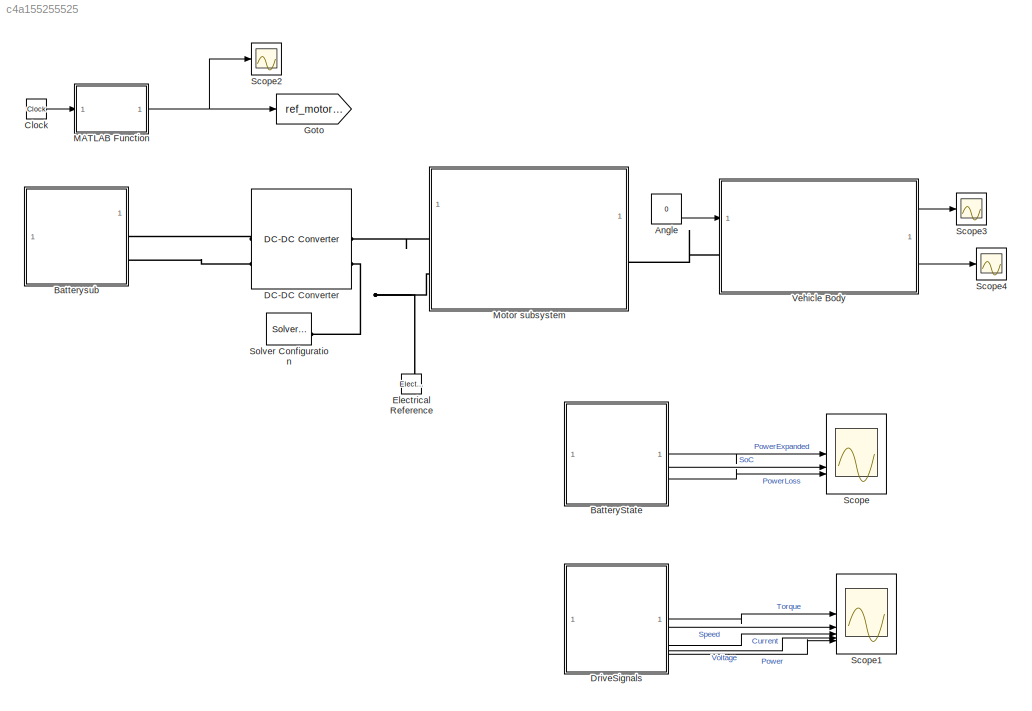
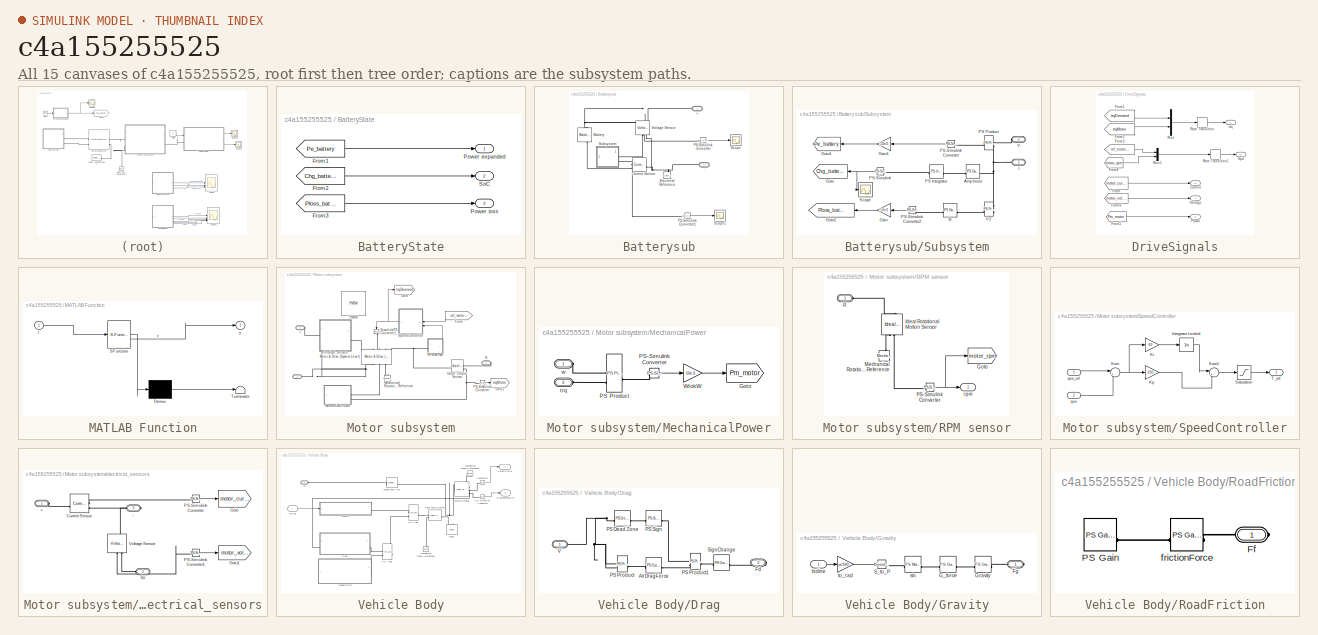
[diagram: thumbnail index - all 15 canvases of the model, root first then tree order]
MODEL slx_c4a155255525
KIND model
CONFIG AbsTol = 1e-3
CONFIG EnableMultiTasking = off
CONFIG FixedStep = auto
CONFIG MaxStep = auto
CONFIG MinStep = auto
CONFIG RelTol = 1e-3
CONFIG SampleTimeConstraint = Unconstrained
CONFIG SolverName = ode15s
CONFIG StartTime = 0.0
CONFIG StopTime = 10
BLOCK [Constant] Angle
  NameLocation = top
  Value = 0
BLOCK [SubSystem] BatteryState
BLOCK [From] BatteryState/From1
  GotoTag = Pe_battery
  TagVisibility = global
BLOCK [From] BatteryState/From2
  GotoTag = Chg_battery
  TagVisibility = global
BLOCK [From] BatteryState/From3
  GotoTag = Ploss_battery
  TagVisibility = global
BLOCK [Outport] BatteryState/Power expanded 
BLOCK [Outport] BatteryState/Power loss
  Port = 3
BLOCK [Outport] BatteryState/SoC
  Port = 2
BLOCK [SubSystem] Batterysub
BLOCK [PMIOPort] Batterysub/+
  Side = Left
BLOCK [PMIOPort] Batterysub/-
  Port = 2
  Side = Left
BLOCK [Reference] Batterysub/Battery  REF=batteryecm_lib/Battery
  LibrarySourceBlock = ee_lib/Sources/Battery
  NameLocation = right
  SourceBlock = batteryecm_lib/Battery
  SourceType = Battery
BLOCK [Reference] Batterysub/Current Sensor  REF=fl_lib/Electrical/Electrical Sensors/Current Sensor
  SourceBlock = fl_lib/Electrical/Electrical Sensors/Current Sensor
  SourceType = Current Sensor
BLOCK [Reference] Batterysub/Electrical Reference  REF=fl_lib/Electrical/Electrical Elements/Electrical Reference
  NameLocation = right
  SourceBlock = fl_lib/Electrical/Electrical Elements/Electrical Reference
  SourceType = Electrical Reference
BLOCK [Reference] Batterysub/PS-Simulink Converter  REF=nesl_utility/PS-Simulink
Converter
  SourceBlock = nesl_utility/PS-Simulink\nConverter
  SourceType = PS-Simulink\nConverter
BLOCK [Reference] Batterysub/PS-Simulink Converter1  REF=nesl_utility/PS-Simulink
Converter
  SourceBlock = nesl_utility/PS-Simulink\nConverter
  SourceType = PS-Simulink\nConverter
BLOCK [Scope] Batterysub/Scope
  Floating = off
  NumInputPorts = 1
  ScopeSpecificationString = Simulink.scopes.TimeScopeBlockCfg('CurrentConfiguration', extmgr.ConfigurationSet(extmgr.Configuration('Core','General UI',true),extmgr.Configuration('Core','Source UI',true),extmgr.Configuration('Sources','WiredSimulink',true,'DataLoggingVariableName','ScopeData3'),extmgr.Configuration('Visuals','Time Domain',true,'SerializedDisplays',{struct('MinYLimReal','195.54002','MaxYLimReal','195.61664','Y...<+1483ch>
BLOCK [Scope] Batterysub/Scope1
  Floating = off
  NumInputPorts = 1
  ScopeSpecificationString = Simulink.scopes.TimeScopeBlockCfg('CurrentConfiguration', extmgr.ConfigurationSet(extmgr.Configuration('Core','General UI',true),extmgr.Configuration('Core','Source UI',true),extmgr.Configuration('Sources','WiredSimulink',true,'DataLoggingVariableName','ScopeData4'),extmgr.Configuration('Visuals','Time Domain',true,'SerializedDisplays',{struct('MinYLimReal','0.21756','MaxYLimReal','1.74984','YLabe...<+1468ch>
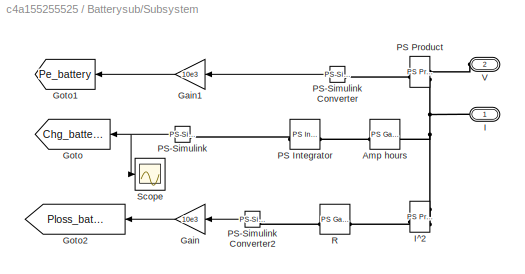
BLOCK [SubSystem] Batterysub/Subsystem
BLOCK [Reference] Batterysub/Subsystem/Amp hours  REF=fl_lib/Physical Signals/Functions/PS Gain
  SourceBlock = fl_lib/Physical Signals/Functions/PS Gain
  SourceType = PS Gain
BLOCK [Gain] Batterysub/Subsystem/Gain
  Gain = 10e3
BLOCK [Gain] Batterysub/Subsystem/Gain1
  Gain = 10e3
BLOCK [Goto] Batterysub/Subsystem/Goto
  GotoTag = Chg_battery
  TagVisibility = global
BLOCK [Goto] Batterysub/Subsystem/Goto1
  GotoTag = Pe_battery
  TagVisibility = global
BLOCK [Goto] Batterysub/Subsystem/Goto2
  GotoTag = Ploss_battery
  TagVisibility = global
BLOCK [PMIOPort] Batterysub/Subsystem/I
  Side = Left
BLOCK [Reference] Batterysub/Subsystem/I^2  REF=fl_lib/Physical Signals/Functions/PS Product
  SourceBlock = fl_lib/Physical Signals/Functions/PS Product
  SourceType = PS Product
BLOCK [Reference] Batterysub/Subsystem/PS Integrator  REF=fl_lib/Physical Signals/Linear Operators/PS Integrator
  SourceBlock = fl_lib/Physical Signals/Linear Operators/PS Integrator
  SourceType = PS Integrator
BLOCK [Reference] Batterysub/Subsystem/PS Product  REF=fl_lib/Physical Signals/Functions/PS Product
  SourceBlock = fl_lib/Physical Signals/Functions/PS Product
  SourceType = PS Product
BLOCK [Reference] Batterysub/Subsystem/PS-Simulink   REF=nesl_utility/PS-Simulink
Converter
  SourceBlock = nesl_utility/PS-Simulink\nConverter
  SourceType = PS-Simulink\nConverter
BLOCK [Reference] Batterysub/Subsystem/PS-Simulink Converter  REF=nesl_utility/PS-Simulink
Converter
  SourceBlock = nesl_utility/PS-Simulink\nConverter
  SourceType = PS-Simulink\nConverter
BLOCK [Reference] Batterysub/Subsystem/PS-Simulink Converter2  REF=nesl_utility/PS-Simulink
Converter
  SourceBlock = nesl_utility/PS-Simulink\nConverter
  SourceType = PS-Simulink\nConverter
BLOCK [Reference] Batterysub/Subsystem/R  REF=fl_lib/Physical Signals/Functions/PS Gain
  SourceBlock = fl_lib/Physical Signals/Functions/PS Gain
  SourceType = PS Gain
BLOCK [Scope] Batterysub/Subsystem/Scope
  Floating = off
  NumInputPorts = 1
  ScopeSpecificationString = Simulink.scopes.TimeScopeBlockCfg('CurrentConfiguration', extmgr.ConfigurationSet(extmgr.Configuration('Core','General UI',true),extmgr.Configuration('Core','Source UI',true),extmgr.Configuration('Sources','WiredSimulink',true,'DataLoggingVariableName','ScopeData5'),extmgr.Configuration('Visuals','Time Domain',true,'SerializedDisplays',{struct('MinYLimReal','0.99906','MaxYLimReal','1.02389','YLabe...<+1529ch>
BLOCK [PMIOPort] Batterysub/Subsystem/V
  Port = 2
  Side = Left
BLOCK [Reference] Batterysub/Voltage Sensor  REF=fl_lib/Electrical/Electrical Sensors/Voltage Sensor
  NameLocation = right
  SourceBlock = fl_lib/Electrical/Electrical Sensors/Voltage Sensor
  SourceType = Voltage Sensor
BLOCK [Clock] Clock
BLOCK [Reference] DC-DC Converter  REF=ee_lib/Semiconductors &
Converters/Converters/DC-DC Converter
  SourceBlock = ee_lib/Semiconductors &\nConverters/Converters/DC-DC Converter
  SourceType = DC-DC Converter
BLOCK [SubSystem] DriveSignals
BLOCK [Outport] DriveSignals/Current
  Port = 3
BLOCK [From] DriveSignals/From
  GotoTag = motor_current
  TagVisibility = global
BLOCK [From] DriveSignals/From1
  GotoTag = trqDemand
  TagVisibility = global
BLOCK [From] DriveSignals/From2
  GotoTag = trqMotor
  TagVisibility = global
BLOCK [From] DriveSignals/From3
  GotoTag = ref_motor_rpm
  TagVisibility = global
BLOCK [From] DriveSignals/From4
  GotoTag = motor_voltage
  TagVisibility = global
BLOCK [From] DriveSignals/From5
  GotoTag = Pm_motor
  TagVisibility = global
BLOCK [From] DriveSignals/From6
  GotoTag = motor_rpm
  TagVisibility = global
BLOCK [Mux] DriveSignals/Mux
  DisplayOption = bar
  Inputs = 2
BLOCK [Mux] DriveSignals/Mux1
  DisplayOption = bar
  Inputs = 2
BLOCK [Outport] DriveSignals/Power
  Port = 5
BLOCK [RateTransition] DriveSignals/Rate Transition
BLOCK [RateTransition] DriveSignals/Rate Transition1
BLOCK [Outport] DriveSignals/Spd
  Port = 2
BLOCK [Outport] DriveSignals/Voltage
  Port = 4
BLOCK [Outport] DriveSignals/trq
BLOCK [Reference] Electrical Reference  REF=fl_lib/Electrical/Electrical Elements/Electrical Reference
  NameLocation = right
  SourceBlock = fl_lib/Electrical/Electrical Elements/Electrical Reference
  SourceType = Electrical Reference
BLOCK [Goto] Goto
  GotoTag = ref_motor_rpm
  TagVisibility = global
BLOCK [SubSystem] MATLAB Function
  ErrorFcn = Stateflow.Translate.translate
  PermitHierarchicalResolution = ExplicitOnly
  SFBlockType = MATLAB Function
  TreatAsAtomicUnit = on
BLOCK [Demux] MATLAB Function/ Demux 
  Outputs = 1
BLOCK [S-Function] MATLAB Function/ SFunction 
  EnableBusSupport = on
  FunctionName = sf_sfun
  PortCounts = [1 2]
  SFcnIsStateOwnerBlock = off
  SFunctionDeploymentMode = off
  Tag = Stateflow S-Function 2
BLOCK [Terminator] MATLAB Function/ Terminator 
BLOCK [Inport] MATLAB Function/t
BLOCK [Outport] MATLAB Function/y
BLOCK [SubSystem] Motor subsystem
BLOCK [PMIOPort] Motor subsystem/+
  Side = Left
BLOCK [PMIOPort] Motor subsystem/-
  Port = 2
  Side = Left
BLOCK [From] Motor subsystem/From
  GotoTag = ref_motor_rpm
  TagVisibility = global
BLOCK [Goto] Motor subsystem/Goto
  GotoTag = trqDemand
  TagVisibility = global
BLOCK [Goto] Motor subsystem/Goto1
  GotoTag = trqMotor
  TagVisibility = global
BLOCK [Reference] Motor subsystem/Ideal Torque Sensor  REF=fl_lib/Mechanical/Mechanical Sensors/Ideal Torque Sensor
  SourceBlock = fl_lib/Mechanical/Mechanical Sensors/Ideal Torque Sensor
  SourceType = Ideal Torque Sensor
BLOCK [Reference] Motor subsystem/Mechanical Rotational Reference  REF=fl_lib/Mechanical/Rotational Elements/Mechanical
Rotational Reference
  NameLocation = right
  SourceBlock = fl_lib/Mechanical/Rotational Elements/Mechanical\nRotational Reference
  SourceType = Mechanical\nRotational Reference
BLOCK [SubSystem] Motor subsystem/MechanicalPower
BLOCK [Goto] Motor subsystem/MechanicalPower/Goto
  GotoTag = Pm_motor
  TagVisibility = global
BLOCK [Reference] Motor subsystem/MechanicalPower/PS Product  REF=fl_lib/Physical Signals/Functions/PS Product
  SourceBlock = fl_lib/Physical Signals/Functions/PS Product
  SourceType = PS Product
BLOCK [Reference] Motor subsystem/MechanicalPower/PS-Simulink Converter  REF=nesl_utility/PS-Simulink
Converter
  SourceBlock = nesl_utility/PS-Simulink\nConverter
  SourceType = PS-Simulink\nConverter
BLOCK [Gain] Motor subsystem/MechanicalPower/WtokW
  Gain = 10e-3
BLOCK [PMIOPort] Motor subsystem/MechanicalPower/trq
  Port = 2
  Side = Left
BLOCK [PMIOPort] Motor subsystem/MechanicalPower/w
  NameLocation = top
  Side = Left
BLOCK [Reference] Motor subsystem/Motor & Drive (System Level)  REF=ee_lib/Electromechanical/Motor & Drive
(System Level)
  NameLocation = right
  SourceBlock = ee_lib/Electromechanical/Motor & Drive\n(System Level)
  SourceType = Motor & Drive\n(System Level)
BLOCK [Reference] Motor subsystem/PMSM  REF=ee_lib/Electromechanical/Permanent Magnet/PMSM
  SourceBlock = ee_lib/Electromechanical/Permanent Magnet/PMSM
  SourceType = PMSM
BLOCK [Reference] Motor subsystem/PS-Simulink Converter  REF=nesl_utility/PS-Simulink
Converter
  SourceBlock = nesl_utility/PS-Simulink\nConverter
  SourceType = PS-Simulink\nConverter
BLOCK [PMIOPort] Motor subsystem/R
  Port = 3
  Side = Right
BLOCK [SubSystem] Motor subsystem/RPM sensor
  PortSchema = {"entries":[{"content":{"sides":[{"content":{"connectorIds":["LConn1"]},"type":"ConnectorPlacement.EquallySpacedRectSide","uuid":"39d046d5-f421-4f0d-879d-c19748025329"},{"content":{"side":"RIGHT"},"type":"ConnectorPlacement.EquallySpacedRectSide","uuid":"b6149d9e-7ab3-4f68-a15b-9fef8f2169c7"},{"content":{"connectorIds":["Out1"],"side":"TOP"},"type":"ConnectorPlacement.EquallySpacedRectSide","uuid"...<+225ch>
BLOCK [Goto] Motor subsystem/RPM sensor/Goto
  GotoTag = motor_rpm
  TagVisibility = global
BLOCK [Reference] Motor subsystem/RPM sensor/Ideal Rotational Motion Sensor  REF=fl_lib/Mechanical/Mechanical Sensors/Ideal Rotational
Motion Sensor
  NameLocation = left
  SourceBlock = fl_lib/Mechanical/Mechanical Sensors/Ideal Rotational\nMotion Sensor
  SourceType = Ideal Rotational\nMotion Sensor
BLOCK [Reference] Motor subsystem/RPM sensor/Mechanical Rotational Reference  REF=fl_lib/Mechanical/Rotational Elements/Mechanical
Rotational Reference
  NameLocation = right
  SourceBlock = fl_lib/Mechanical/Rotational Elements/Mechanical\nRotational Reference
  SourceType = Mechanical\nRotational Reference
BLOCK [Reference] Motor subsystem/RPM sensor/PS-Simulink Converter  REF=nesl_utility/PS-Simulink
Converter
  SourceBlock = nesl_utility/PS-Simulink\nConverter
  SourceType = PS-Simulink\nConverter
BLOCK [PMIOPort] Motor subsystem/RPM sensor/R
  Side = Left
BLOCK [Outport] Motor subsystem/RPM sensor/rpm
BLOCK [Reference] Motor subsystem/Simulink-PS Converter1  REF=nesl_utility/Simulink-PS
Converter
  NameLocation = left
  SourceBlock = nesl_utility/Simulink-PS\nConverter
  SourceType = Simulink-PS\nConverter
BLOCK [SubSystem] Motor subsystem/SpeedController
BLOCK [Integrator] Motor subsystem/SpeedController/Integrator Limited
  LimitOutput = on
  LowerSaturationLimit = -40
  UpperSaturationLimit = 40
BLOCK [Gain] Motor subsystem/SpeedController/Ki
  Gain = 60
BLOCK [Gain] Motor subsystem/SpeedController/Kp
  Gain = 200
BLOCK [Saturate] Motor subsystem/SpeedController/Saturation
  LowerLimit = -40
  UpperLimit = 400
BLOCK [Sum] Motor subsystem/SpeedController/Sum
  Inputs = |+-
  NameLocation = top
BLOCK [Sum] Motor subsystem/SpeedController/Sum1
  Inputs = |++
BLOCK [Outport] Motor subsystem/SpeedController/T_ref
BLOCK [Inport] Motor subsystem/SpeedController/rpm
  Port = 2
BLOCK [Inport] Motor subsystem/SpeedController/rpm_ref
BLOCK [SubSystem] Motor subsystem/electrical_sensors
BLOCK [PMIOPort] Motor subsystem/electrical_sensors/+
  Side = Left
BLOCK [PMIOPort] Motor subsystem/electrical_sensors/-
  Port = 3
  Side = Right
BLOCK [PMIOPort] Motor subsystem/electrical_sensors/0V
  Port = 2
  Side = Left
BLOCK [Reference] Motor subsystem/electrical_sensors/Current Sensor  REF=fl_lib/Electrical/Electrical Sensors/Current Sensor
  SourceBlock = fl_lib/Electrical/Electrical Sensors/Current Sensor
  SourceType = Current Sensor
BLOCK [Goto] Motor subsystem/electrical_sensors/Goto
  GotoTag = motor_current
  TagVisibility = global
BLOCK [Goto] Motor subsystem/electrical_sensors/Goto1
  GotoTag = motor_voltage
  TagVisibility = global
BLOCK [Reference] Motor subsystem/electrical_sensors/PS-Simulink Converter  REF=nesl_utility/PS-Simulink
Converter
  SourceBlock = nesl_utility/PS-Simulink\nConverter
  SourceType = PS-Simulink\nConverter
BLOCK [Reference] Motor subsystem/electrical_sensors/PS-Simulink Converter1  REF=nesl_utility/PS-Simulink
Converter
  SourceBlock = nesl_utility/PS-Simulink\nConverter
  SourceType = PS-Simulink\nConverter
BLOCK [Reference] Motor subsystem/electrical_sensors/Voltage Sensor  REF=fl_lib/Electrical/Electrical Sensors/Voltage Sensor
  NameLocation = right
  SourceBlock = fl_lib/Electrical/Electrical Sensors/Voltage Sensor
  SourceType = Voltage Sensor
BLOCK [Scope] Scope
  Floating = off
  NumInputPorts = 3
  ScopeSpecificationString = Simulink.scopes.TimeScopeBlockCfg('CurrentConfiguration', extmgr.ConfigurationSet(extmgr.Configuration('Core','General UI',true),extmgr.Configuration('Core','Source UI',true),extmgr.Configuration('Sources','WiredSimulink',true),extmgr.Configuration('Visuals','Time Domain',true,'SerializedDisplays',{struct('MinYLimReal','425698.03885','MaxYLimReal','3421748.57382','YLabelReal','','MinYLimMag','4256...<+2322ch>
BLOCK [Scope] Scope1
  Floating = off
  NumInputPorts = 5
  ScopeSpecificationString = Simulink.scopes.TimeScopeBlockCfg('CurrentConfiguration', extmgr.ConfigurationSet(extmgr.Configuration('Core','General UI',true),extmgr.Configuration('Core','Source UI',true),extmgr.Configuration('Sources','WiredSimulink',true,'DataLoggingVariableName','ScopeData1'),extmgr.Configuration('Visuals','Time Domain',true,'SerializedDisplays',{struct('MinYLimReal','-95.00000','MaxYLimReal','455.00000','Y...<+4284ch>
BLOCK [Scope] Scope2
  Floating = off
  NumInputPorts = 1
  ScopeSpecificationString = Simulink.scopes.TimeScopeBlockCfg('CurrentConfiguration', extmgr.ConfigurationSet(extmgr.Configuration('Core','General UI',true),extmgr.Configuration('Core','Source UI',true),extmgr.Configuration('Sources','WiredSimulink',true,'DataLoggingVariableName','ScopeData2'),extmgr.Configuration('Visuals','Time Domain',true,'SerializedDisplays',{struct('MinYLimReal','-12.5','MaxYLimReal','112.5','YLabelRea...<+1449ch>
BLOCK [Scope] Scope3
  Floating = off
  NumInputPorts = 1
  ScopeSpecificationString = Simulink.scopes.TimeScopeBlockCfg('CurrentConfiguration', extmgr.ConfigurationSet(extmgr.Configuration('Core','General UI',true),extmgr.Configuration('Core','Source UI',true),extmgr.Configuration('Sources','WiredSimulink',true,'DataLoggingVariableName','ScopeData1'),extmgr.Configuration('Visuals','Time Domain',true,'SerializedDisplays',{struct('MinYLimReal','-0.08983','MaxYLimReal','0.80843','YLab...<+1487ch>
BLOCK [Scope] Scope4
  Floating = off
  NumInputPorts = 1
  ScopeSpecificationString = Simulink.scopes.TimeScopeBlockCfg('CurrentConfiguration', extmgr.ConfigurationSet(extmgr.Configuration('Core','General UI',true),extmgr.Configuration('Core','Source UI',true),extmgr.Configuration('Sources','WiredSimulink',true,'DataLoggingVariableName','ScopeData2'),extmgr.Configuration('Visuals','Time Domain',true,'SerializedDisplays',{struct('MinYLimReal','-0.60262','MaxYLimReal','5.42356','YLab...<+1462ch>
BLOCK [Reference] Solver Configuration  REF=nesl_utility/Solver
Configuration
  SourceBlock = nesl_utility/Solver\nConfiguration
  SourceType = Solver\nConfiguration
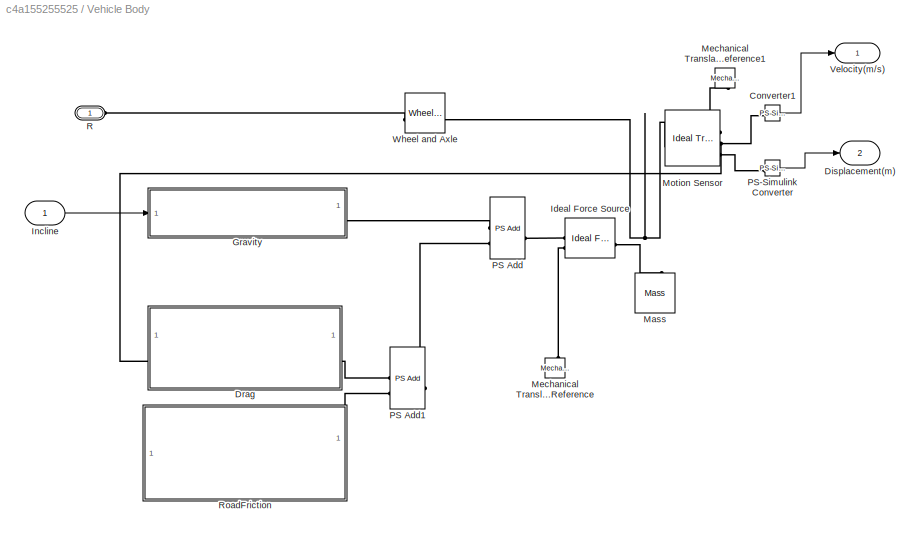
BLOCK [SubSystem] Vehicle Body
BLOCK [Reference] Vehicle Body/Converter1  REF=nesl_utility/PS-Simulink
Converter
  SourceBlock = nesl_utility/PS-Simulink\nConverter
  SourceType = PS-Simulink\nConverter
BLOCK [Outport] Vehicle Body/Displacement(m)
  Port = 2
BLOCK [SubSystem] Vehicle Body/Drag
BLOCK [Reference] Vehicle Body/Drag/AirDragForce  REF=fl_lib/Physical Signals/Functions/PS Gain
  SourceBlock = fl_lib/Physical Signals/Functions/PS Gain
  SourceType = PS Gain
BLOCK [PMIOPort] Vehicle Body/Drag/Fd
  Port = 2
  Side = Right
BLOCK [Reference] Vehicle Body/Drag/PS Dead Zone  REF=fl_lib/Physical Signals/Nonlinear Operators/PS Dead Zone
  SourceBlock = fl_lib/Physical Signals/Nonlinear Operators/PS Dead Zone
  SourceType = PS Dead Zone
BLOCK [Reference] Vehicle Body/Drag/PS Product  REF=fl_lib/Physical Signals/Functions/PS Product
  SourceBlock = fl_lib/Physical Signals/Functions/PS Product
  SourceType = PS Product
BLOCK [Reference] Vehicle Body/Drag/PS Product1  REF=fl_lib/Physical Signals/Functions/PS Product
  SourceBlock = fl_lib/Physical Signals/Functions/PS Product
  SourceType = PS Product
BLOCK [Reference] Vehicle Body/Drag/PS Sign  REF=fl_lib/Physical Signals/Nonlinear Operators/PS Sign
  SourceBlock = fl_lib/Physical Signals/Nonlinear Operators/PS Sign
  SourceType = PS Sign
BLOCK [Reference] Vehicle Body/Drag/SignChange  REF=fl_lib/Physical Signals/Functions/PS Gain
  SourceBlock = fl_lib/Physical Signals/Functions/PS Gain
  SourceType = PS Gain
BLOCK [PMIOPort] Vehicle Body/Drag/V
  Side = Left
BLOCK [SubSystem] Vehicle Body/Gravity
BLOCK [PMIOPort] Vehicle Body/Gravity/Fg
  Side = Right
BLOCK [Reference] Vehicle Body/Gravity/G_force  REF=fl_lib/Physical Signals/Functions/PS Gain
  SourceBlock = fl_lib/Physical Signals/Functions/PS Gain
  SourceType = PS Gain
BLOCK [Reference] Vehicle Body/Gravity/Gravity  REF=fl_lib/Physical Signals/Functions/PS Gain
  SourceBlock = fl_lib/Physical Signals/Functions/PS Gain
  SourceType = PS Gain
BLOCK [Inport] Vehicle Body/Gravity/Incline
BLOCK [Reference] Vehicle Body/Gravity/S_to_P  REF=nesl_utility/Simulink-PS
Converter
  SourceBlock = nesl_utility/Simulink-PS\nConverter
  SourceType = Simulink-PS\nConverter
BLOCK [Reference] Vehicle Body/Gravity/sin  REF=fl_lib/Physical Signals/Functions/PS Math Function
  SourceBlock = fl_lib/Physical Signals/Functions/PS Math Function
  SourceType = PS Math Function
BLOCK [Gain] Vehicle Body/Gravity/to_rad
  Gain = pi/180
BLOCK [Reference] Vehicle Body/Ideal Force Source  REF=fl_lib/Mechanical/Mechanical Sources/Ideal Force Source
  SourceBlock = fl_lib/Mechanical/Mechanical Sources/Ideal Force Source
  SourceType = Ideal Force Source
BLOCK [Inport] Vehicle Body/Incline
BLOCK [Reference] Vehicle Body/Mass  REF=fl_lib/Mechanical/Translational
Elements/Mass
  NameLocation = right
  SourceBlock = fl_lib/Mechanical/Translational\nElements/Mass
  SourceType = Mass
BLOCK [Reference] Vehicle Body/Mechanical Translational Reference  REF=fl_lib/Mechanical/Translational
Elements/Mechanical
Translational
Reference
  NameLocation = right
  SourceBlock = fl_lib/Mechanical/Translational\nElements/Mechanical\nTranslational\nReference
  SourceType = Mechanical\nTranslational\nReference
BLOCK [Reference] Vehicle Body/Mechanical Translational Reference1  REF=fl_lib/Mechanical/Translational
Elements/Mechanical
Translational
Reference
  NameLocation = left
  SourceBlock = fl_lib/Mechanical/Translational\nElements/Mechanical\nTranslational\nReference
  SourceType = Mechanical\nTranslational\nReference
BLOCK [Reference] Vehicle Body/Motion Sensor  REF=fl_lib/Mechanical/Mechanical Sensors/Ideal Translational
Motion Sensor
  SourceBlock = fl_lib/Mechanical/Mechanical Sensors/Ideal Translational\nMotion Sensor
  SourceType = Ideal Translational\nMotion Sensor
BLOCK [Reference] Vehicle Body/PS Add  REF=fl_lib/Physical Signals/Functions/PS Add
  SourceBlock = fl_lib/Physical Signals/Functions/PS Add
  SourceType = PS Add
BLOCK [Reference] Vehicle Body/PS Add1  REF=fl_lib/Physical Signals/Functions/PS Add
  SourceBlock = fl_lib/Physical Signals/Functions/PS Add
  SourceType = PS Add
BLOCK [Reference] Vehicle Body/PS-Simulink Converter  REF=nesl_utility/PS-Simulink
Converter
  SourceBlock = nesl_utility/PS-Simulink\nConverter
  SourceType = PS-Simulink\nConverter
BLOCK [PMIOPort] Vehicle Body/R
  Side = Left
BLOCK [SubSystem] Vehicle Body/RoadFriction
BLOCK [PMIOPort] Vehicle Body/RoadFriction/Ff
  Side = Right
BLOCK [Reference] Vehicle Body/RoadFriction/PS Gain  REF=fl_lib/Physical Signals/Functions/PS Gain
  SourceBlock = fl_lib/Physical Signals/Functions/PS Gain
  SourceType = PS Gain
BLOCK [Reference] Vehicle Body/RoadFriction/frictionForce  REF=fl_lib/Physical Signals/Functions/PS Gain
  SourceBlock = fl_lib/Physical Signals/Functions/PS Gain
  SourceType = PS Gain
BLOCK [Outport] Vehicle Body/Velocity(m//s)
BLOCK [Reference] Vehicle Body/Wheel and Axle  REF=fl_lib/Mechanical/Mechanisms/Wheel and Axle
  SourceBlock = fl_lib/Mechanical/Mechanisms/Wheel and Axle
  SourceType = Wheel and Axle
LINE Angle:1 -> Vehicle Body:1
LINE BatteryState/From1:1 -> BatteryState/Power expanded :1
LINE BatteryState/From2:1 -> BatteryState/SoC:1
LINE BatteryState/From3:1 -> BatteryState/Power loss:1
LINE BatteryState:1 -> Scope:1
LINE BatteryState:2 -> Scope:2
LINE BatteryState:3 -> Scope:3
LINE Batterysub/PS-Simulink Converter1:1 -> Batterysub/Scope1:1
LINE Batterysub/PS-Simulink Converter:1 -> Batterysub/Scope:1
LINE Batterysub/Subsystem/Gain1:1 -> Batterysub/Subsystem/Goto1:1
LINE Batterysub/Subsystem/Gain:1 -> Batterysub/Subsystem/Goto2:1
NET Batterysub/Subsystem/PS-Simulink :1 -> Batterysub/Subsystem/Goto:1, Batterysub/Subsystem/Scope:1
LINE Batterysub/Subsystem/PS-Simulink Converter2:1 -> Batterysub/Subsystem/Gain:1
LINE Batterysub/Subsystem/PS-Simulink Converter:1 -> Batterysub/Subsystem/Gain1:1
LINE Clock:1 -> MATLAB Function:1
LINE DriveSignals/From1:1 -> DriveSignals/Mux:1
LINE DriveSignals/From2:1 -> DriveSignals/Mux:2
LINE DriveSignals/From3:1 -> DriveSignals/Mux1:1
LINE DriveSignals/From4:1 -> DriveSignals/Voltage:1
LINE DriveSignals/From5:1 -> DriveSignals/Power:1
LINE DriveSignals/From6:1 -> DriveSignals/Mux1:2
LINE DriveSignals/From:1 -> DriveSignals/Current:1
LINE DriveSignals/Mux1:1 -> DriveSignals/Rate Transition1:1
LINE DriveSignals/Mux:1 -> DriveSignals/Rate Transition:1
LINE DriveSignals/Rate Transition1:1 -> DriveSignals/Spd:1
LINE DriveSignals/Rate Transition:1 -> DriveSignals/trq:1
LINE DriveSignals:1 -> Scope1:1
LINE DriveSignals:2 -> Scope1:2
LINE DriveSignals:3 -> Scope1:3
LINE DriveSignals:4 -> Scope1:4
LINE DriveSignals:5 -> Scope1:5
NET MATLAB Function:1 -> Goto:1, Scope2:1
LINE Motor subsystem/From:1 -> Motor subsystem/SpeedController:1
LINE Motor subsystem/MechanicalPower/PS-Simulink Converter:1 -> Motor subsystem/MechanicalPower/WtokW:1
LINE Motor subsystem/MechanicalPower/WtokW:1 -> Motor subsystem/MechanicalPower/Goto:1
LINE Motor subsystem/PS-Simulink Converter:1 -> Motor subsystem/Goto1:1
NET Motor subsystem/RPM sensor/PS-Simulink Converter:1 -> Motor subsystem/RPM sensor/Goto:1, Motor subsystem/RPM sensor/rpm:1
LINE Motor subsystem/RPM sensor:1 -> Motor subsystem/SpeedController:2
LINE Motor subsystem/SpeedController/Integrator Limited:1 -> Motor subsystem/SpeedController/Sum1:1
LINE Motor subsystem/SpeedController/Ki:1 -> Motor subsystem/SpeedController/Integrator Limited:1
LINE Motor subsystem/SpeedController/Kp:1 -> Motor subsystem/SpeedController/Sum1:2
LINE Motor subsystem/SpeedController/Saturation:1 -> Motor subsystem/SpeedController/T_ref:1
LINE Motor subsystem/SpeedController/Sum1:1 -> Motor subsystem/SpeedController/Saturation:1
NET Motor subsystem/SpeedController/Sum:1 -> Motor subsystem/SpeedController/Ki:1, Motor subsystem/SpeedController/Kp:1
LINE Motor subsystem/SpeedController/rpm:1 -> Motor subsystem/SpeedController/Sum:2
LINE Motor subsystem/SpeedController/rpm_ref:1 -> Motor subsystem/SpeedController/Sum:1
NET Motor subsystem/SpeedController:1 -> Motor subsystem/Goto:1, Motor subsystem/Simulink-PS Converter1:1
LINE Motor subsystem/electrical_sensors/PS-Simulink Converter1:1 -> Motor subsystem/electrical_sensors/Goto1:1
LINE Motor subsystem/electrical_sensors/PS-Simulink Converter:1 -> Motor subsystem/electrical_sensors/Goto:1
LINE Vehicle Body/Converter1:1 -> Vehicle Body/Velocity(m//s):1
LINE Vehicle Body/Gravity/Incline:1 -> Vehicle Body/Gravity/to_rad:1
LINE Vehicle Body/Gravity/to_rad:1 -> Vehicle Body/Gravity/S_to_P:1
LINE Vehicle Body/Incline:1 -> Vehicle Body/Gravity:1
LINE Vehicle Body/PS-Simulink Converter:1 -> Vehicle Body/Displacement(m):1
LINE Vehicle Body:1 -> Scope3:1
LINE Vehicle Body:2 -> Scope4:1
PNET net1: Batterysub/+:RConn1 -- Batterysub/Battery:LConn1 -- Batterysub/Voltage Sensor:LConn1
PNET net2: Batterysub/-:RConn1 -- Batterysub/Current Sensor:LConn1 -- Batterysub/Electrical Reference:LConn1 -- Batterysub/Voltage Sensor:RConn2
PLINE Batterysub/Battery:RConn1 -- Batterysub/Current Sensor:RConn2
PNET net3: Batterysub/Current Sensor:RConn1 -- Batterysub/PS-Simulink Converter1:LConn1 -- Batterysub/Subsystem:LConn2
PNET net4: Batterysub/PS-Simulink Converter:LConn1 -- Batterysub/Subsystem:LConn1 -- Batterysub/Voltage Sensor:RConn1
PNET net5: Batterysub/Subsystem/Amp hours:LConn1 -- Batterysub/Subsystem/I:RConn1 -- Batterysub/Subsystem/I^2:LConn1 -- Batterysub/Subsystem/I^2:LConn2 -- Batterysub/Subsystem/PS Product:LConn2
PLINE Batterysub/Subsystem/Amp hours:RConn1 -- Batterysub/Subsystem/PS Integrator:LConn1
PLINE Batterysub/Subsystem/I^2:RConn1 -- Batterysub/Subsystem/R:LConn1
PLINE Batterysub/Subsystem/PS Integrator:RConn1 -- Batterysub/Subsystem/PS-Simulink :LConn1
PLINE Batterysub/Subsystem/PS Product:LConn1 -- Batterysub/Subsystem/V:RConn1
PLINE Batterysub/Subsystem/PS Product:RConn1 -- Batterysub/Subsystem/PS-Simulink Converter:LConn1
PLINE Batterysub/Subsystem/PS-Simulink Converter2:LConn1 -- Batterysub/Subsystem/R:RConn1
PLINE Batterysub:LConn1 -- DC-DC Converter:LConn1
PLINE Batterysub:LConn2 -- DC-DC Converter:LConn2
PLINE DC-DC Converter:RConn1 -- Motor subsystem:LConn1
PNET net6: DC-DC Converter:RConn2 -- Electrical Reference:LConn1 -- Motor subsystem:LConn2 -- Solver Configuration:RConn1
PLINE Motor subsystem/+:RConn1 -- Motor subsystem/electrical_sensors:LConn1
PNET net7: Motor subsystem/-:RConn1 -- Motor subsystem/Motor & Drive (System Level):RConn1 -- Motor subsystem/electrical_sensors:LConn2
PNET net8: Motor subsystem/Ideal Torque Sensor:LConn1 -- Motor subsystem/Motor & Drive (System Level):LConn3 -- Motor subsystem/RPM sensor:LConn1
PLINE Motor subsystem/Ideal Torque Sensor:RConn1 -- Motor subsystem/R:RConn1
PNET net9: Motor subsystem/Ideal Torque Sensor:RConn2 -- Motor subsystem/MechanicalPower:LConn2 -- Motor subsystem/PS-Simulink Converter:LConn1
PLINE Motor subsystem/Mechanical Rotational Reference:LConn1 -- Motor subsystem/Motor & Drive (System Level):RConn3
PLINE Motor subsystem/MechanicalPower/PS Product:LConn1 -- Motor subsystem/MechanicalPower/w:RConn1
PLINE Motor subsystem/MechanicalPower/PS Product:LConn2 -- Motor subsystem/MechanicalPower/trq:RConn1
PLINE Motor subsystem/MechanicalPower/PS Product:RConn1 -- Motor subsystem/MechanicalPower/PS-Simulink Converter:LConn1
PLINE Motor subsystem/MechanicalPower:LConn1 -- Motor subsystem/Motor & Drive (System Level):RConn2
PLINE Motor subsystem/Motor & Drive (System Level):LConn1 -- Motor subsystem/electrical_sensors:RConn1
PLINE Motor subsystem/Motor & Drive (System Level):LConn2 -- Motor subsystem/Simulink-PS Converter1:RConn1
PLINE Motor subsystem/RPM sensor/Ideal Rotational Motion Sensor:LConn1 -- Motor subsystem/RPM sensor/R:RConn1
PLINE Motor subsystem/RPM sensor/Ideal Rotational Motion Sensor:RConn1 -- Motor subsystem/RPM sensor/Mechanical Rotational Reference:LConn1
PLINE Motor subsystem/RPM sensor/Ideal Rotational Motion Sensor:RConn2 -- Motor subsystem/RPM sensor/PS-Simulink Converter:LConn1
PLINE Motor subsystem/electrical_sensors/+:RConn1 -- Motor subsystem/electrical_sensors/Current Sensor:LConn1
PNET net10: Motor subsystem/electrical_sensors/-:RConn1 -- Motor subsystem/electrical_sensors/Current Sensor:RConn2 -- Motor subsystem/electrical_sensors/Voltage Sensor:LConn1
PLINE Motor subsystem/electrical_sensors/0V:RConn1 -- Motor subsystem/electrical_sensors/Voltage Sensor:RConn2
PLINE Motor subsystem/electrical_sensors/Current Sensor:RConn1 -- Motor subsystem/electrical_sensors/PS-Simulink Converter:LConn1
PLINE Motor subsystem/electrical_sensors/PS-Simulink Converter1:LConn1 -- Motor subsystem/electrical_sensors/Voltage Sensor:RConn1
PLINE Motor subsystem:RConn1 -- Vehicle Body:LConn1
PNET net11: Vehicle Body/Converter1:LConn1 -- Vehicle Body/Drag:LConn1 -- Vehicle Body/Motion Sensor:RConn2
PLINE Vehicle Body/Drag/AirDragForce:LConn1 -- Vehicle Body/Drag/PS Product:RConn1
PLINE Vehicle Body/Drag/AirDragForce:RConn1 -- Vehicle Body/Drag/PS Product1:LConn2
PLINE Vehicle Body/Drag/Fd:RConn1 -- Vehicle Body/Drag/SignChange:RConn1
PNET net12: Vehicle Body/Drag/PS Dead Zone:LConn1 -- Vehicle Body/Drag/PS Product:LConn1 -- Vehicle Body/Drag/PS Product:LConn2 -- Vehicle Body/Drag/V:RConn1
PLINE Vehicle Body/Drag/PS Dead Zone:RConn1 -- Vehicle Body/Drag/PS Sign:LConn1
PLINE Vehicle Body/Drag/PS Product1:LConn1 -- Vehicle Body/Drag/PS Sign:RConn1
PLINE Vehicle Body/Drag/PS Product1:RConn1 -- Vehicle Body/Drag/SignChange:LConn1
PLINE Vehicle Body/Drag:RConn1 -- Vehicle Body/PS Add1:LConn1
PLINE Vehicle Body/Gravity/Fg:RConn1 -- Vehicle Body/Gravity/Gravity:RConn1
PLINE Vehicle Body/Gravity/G_force:LConn1 -- Vehicle Body/Gravity/sin:RConn1
PLINE Vehicle Body/Gravity/G_force:RConn1 -- Vehicle Body/Gravity/Gravity:LConn1
PLINE Vehicle Body/Gravity/S_to_P:RConn1 -- Vehicle Body/Gravity/sin:LConn1
PLINE Vehicle Body/Gravity:RConn1 -- Vehicle Body/PS Add:LConn1
PNET net13: Vehicle Body/Ideal Force Source:LConn1 -- Vehicle Body/Mass:LConn1 -- Vehicle Body/Motion Sensor:LConn1 -- Vehicle Body/Wheel and Axle:RConn1
PLINE Vehicle Body/Ideal Force Source:RConn1 -- Vehicle Body/PS Add:RConn1
PLINE Vehicle Body/Ideal Force Source:RConn2 -- Vehicle Body/Mechanical Translational Reference:LConn1
PLINE Vehicle Body/Mechanical Translational Reference1:LConn1 -- Vehicle Body/Motion Sensor:RConn1
PLINE Vehicle Body/Motion Sensor:RConn3 -- Vehicle Body/PS-Simulink Converter:LConn1
PLINE Vehicle Body/PS Add1:LConn2 -- Vehicle Body/RoadFriction:RConn1
PLINE Vehicle Body/PS Add1:RConn1 -- Vehicle Body/PS Add:LConn2
PLINE Vehicle Body/R:RConn1 -- Vehicle Body/Wheel and Axle:LConn1
PLINE Vehicle Body/RoadFriction/Ff:RConn1 -- Vehicle Body/RoadFriction/frictionForce:RConn1
PLINE Vehicle Body/RoadFriction/PS Gain:RConn1 -- Vehicle Body/RoadFriction/frictionForce:LConn1
note: NET lines group one-source signal fan-out (src -> all destinations, sorted); 1:1 wires keep LINE; PNET lines group multi-terminal physical nets as a canonical sorted terminal list (undirected conserving connections); 2-terminal nets keep the pairwise PLINE form
CHART MATLAB Function states=1 transitions=1
  STATE_LABEL 'eML_blk_kernel()'
  STATE_LABEL 'SCRIPT:\nfunction y = signalGen(t)\nif t < 0\n    y = 0;\nelseif t >= 0 && t < 4\n    y = (100 / 4) * t;\nelseif t >= 4 && t < 6\n    y = 100;\nelseif t >= 6 && t <= 11\n    y = 100 - ((100 / 4) * (t - 6));\nelse\n    y = 0;\nend\n\n\n'
CHART  states=0 transitions=0
